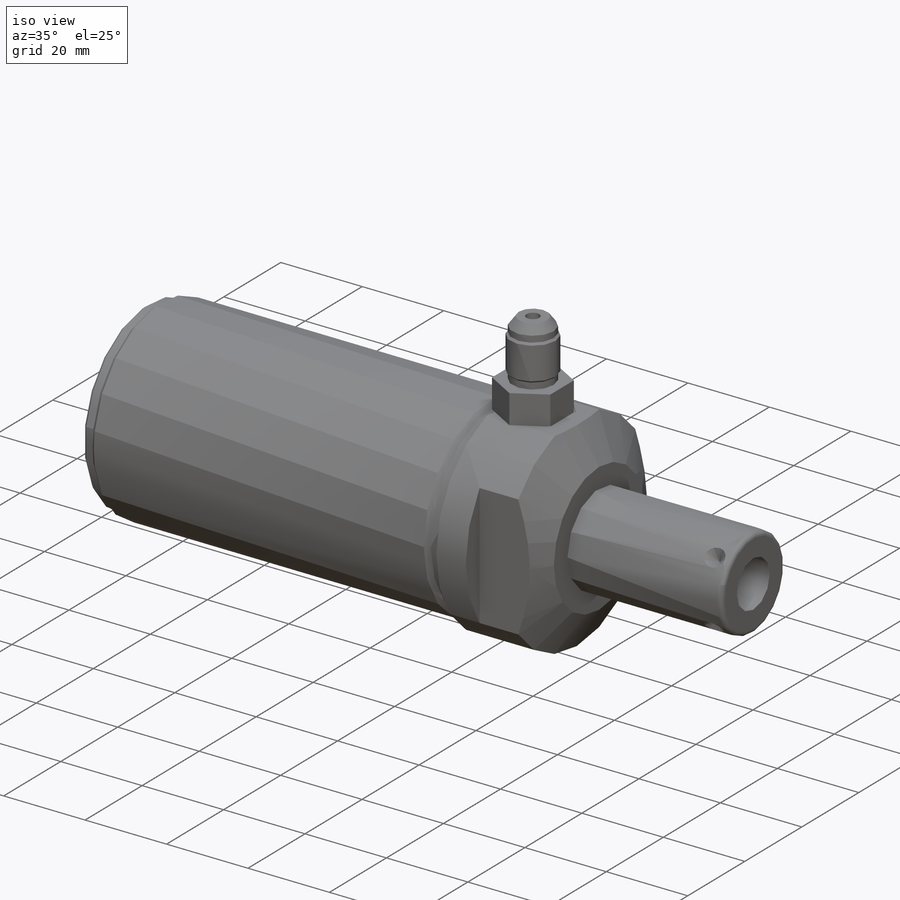
[diagram: iso view]
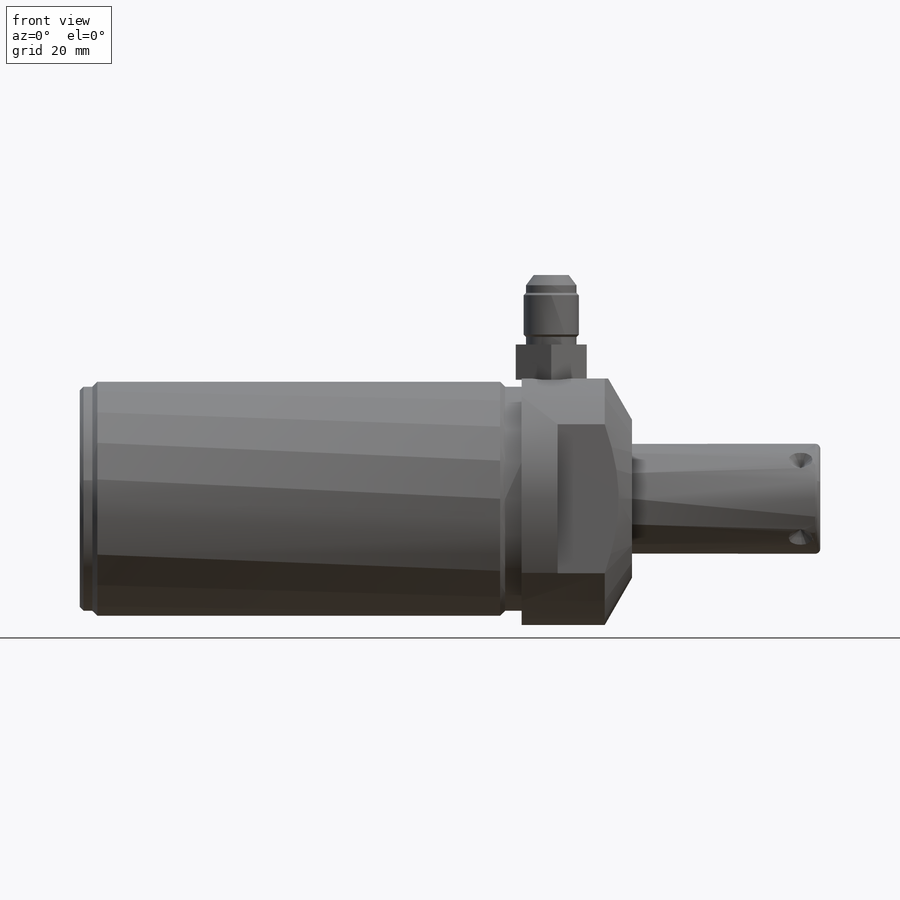
[diagram: front view]
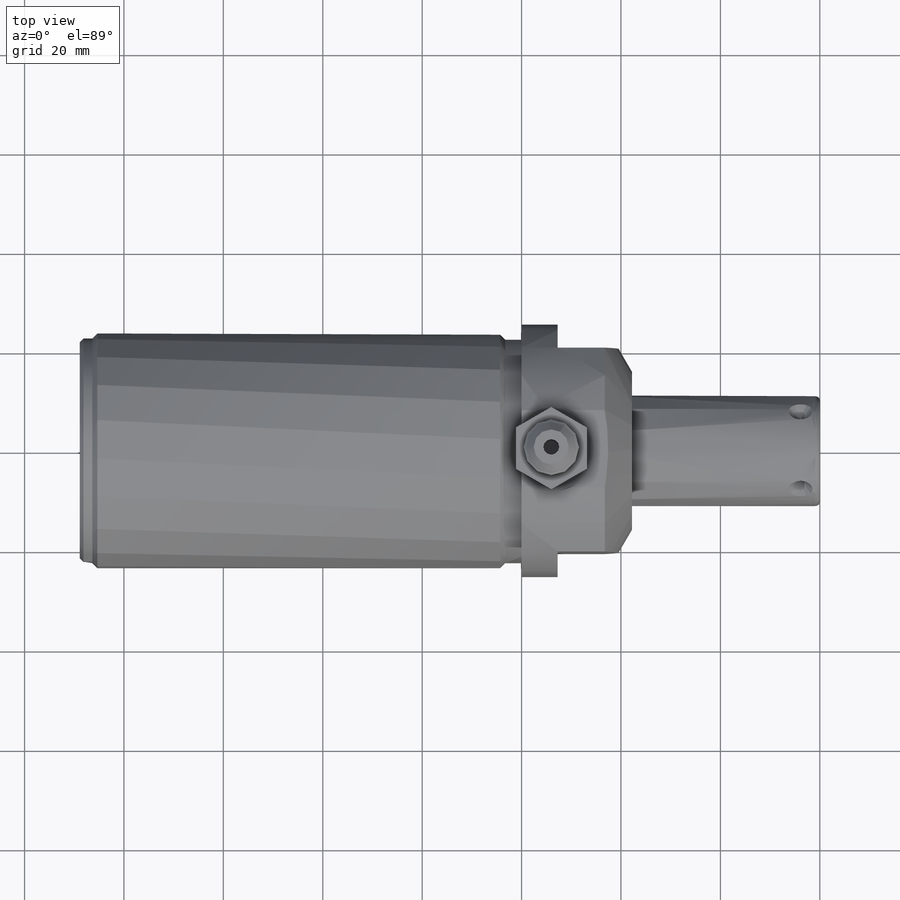
[diagram: top view]
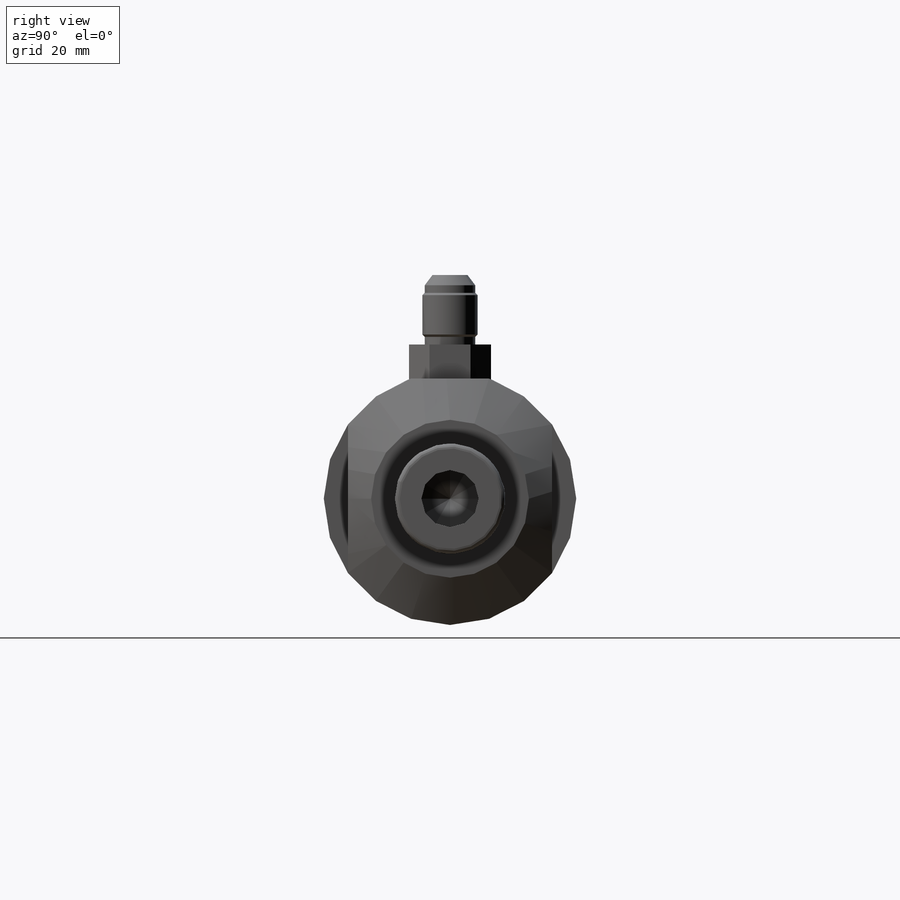
[diagram: right view]
SOLIDWORKS PART (.sldprt)
format: sldprt  version: not decoded by parser v0  size: 340,992 bytes
history: native  units: mm
features: plane x15, sketch x14, cut_revolve x6, cut_extrude x4, extrude x2, revolve x2, material x1, chamfer x1, pattern_circular x1 (+13 scaffold rows collapsed)
feature tree (59):
  scaffold x13  (default folders/planes/origin — collapsed)
  material  "Alloy Steel"
  plane  "Plane1"
  sketch  "Sketch1"  dims[D1=50.8mm]
  extrude  "Extrude1"  Depth=22.225mm
  plane  "Plane2"
  sketch  "Sketch2"  dims[D1=47.244mm]
  cut_extrude  "Cut-Extrude1"  [1 undecoded]
  plane  "Plane4"
  sketch  "Sketch4"  dims[D1=41.021mm D2=24.1808mm]
  cut_extrude  "Cut-Extrude3"  [1 undecoded]
  plane  "Plane6"
  sketch  "Sketch19"  dims[D1=0.0mm]
  cut_extrude  "Cut-Extrude4"  [1 undecoded]
  sketch  "Sketch6"  dims[c1.D1=15.875mm c1.D2=~9.198164mm c2.D2=30.0deg c2.D3=50.8mm]
  cut_revolve  "Cut-Revolve2"  Angle=360deg
  plane  "Plane7"
  sketch  "S2D0002"  dims[D1=12.192mm]
  cut_revolve  "Cut-Revolve3"  Angle=360deg
  sketch  "Sketch20"  dims[D1=17.3228mm]
  cut_extrude  "Cut-Extrude5"  Depth=0.254mm
  plane  "Plane9"
  sketch  "Sketch9"  dims[c1.D1=45.212mm c1.D2=3.302mm c1.D3=1.016mm c2.D3=45.0deg]
  cut_revolve  "Cut-Revolve5"  Angle=360deg
  plane  "Plane11"
  sketch  "Sketch11"  dims[c1.D1=45.212mm c1.D2=2.54mm c1.D3=1.016mm c2.D3=45.0deg]
  cut_revolve  "Cut-Revolve7"  Angle=360deg
  chamfer  "Chamfer1"  Distance=0.762mm Angle=45deg
  plane  "Plane12"
  sketch  "Sketch12"  dims[D3=1.016mm D1=22.225mm D2=60.0964mm]
  revolve  "Revolve1"  Angle=360deg
  plane  "Plane13"
  sketch  "S2D0001"  dims[c1.D1=11.5062mm c1.D2=5.7531mm c2.D2=59.0deg c2.D3=17.018mm]
  cut_revolve  "Cut-Revolve8"  Angle=360deg
  plane  "Plane15"
  plane  "Plane16"
  sketch  "S2D0003"  dims[D1=14.3002mm]
  plane  "Plane17"
  extrude  "Extrude3"  Depth=0mm
  plane  "Plane18"
  sketch  "Sketch16"  dims[c1.D1=5.969mm c1.D2=3.175mm c1.D3=13.97mm c1.D4=~2.576144mm c2.D4=37.0deg c2.D5=10.16mm c2.D6=~7.059276mm c2.D7=11.0998mm c2.D8=0.4699mm c3.D8=45.0deg c3.D9=1.524mm c3.D10=10.16mm c3.D11=0.4699mm c4.D11=45.0deg c4.D12=4.0513mm]
  revolve  "Revolve2"  Angle=360deg
  plane  "Plane19"
  plane  "Plane20"
  sketch  "Sketch17"  dims[c1.D1=3.9624mm c1.D2=4.826mm c1.D3=2.413mm c2.D3=45.0deg]
  cut_revolve  "Cut-Revolve9"  Angle=360deg
  pattern_circular  "CirPattern1"  Count=4 Angle=360deg
decode coverage: 27 of 30 modeling features carry decoded parameters
note: ~ marks probable driven/reference dimensions
note: 3 parameter values undecoded
summary: no parameter record found for 3 features
note: suppression state not decoded; provenance and decode notes live in map.json
